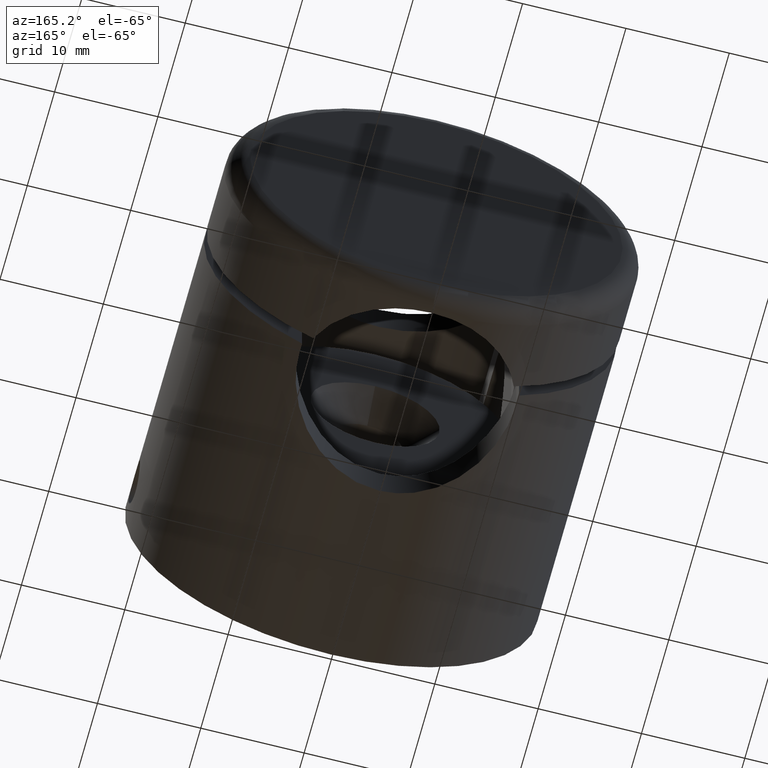
[diagram: clean part render]
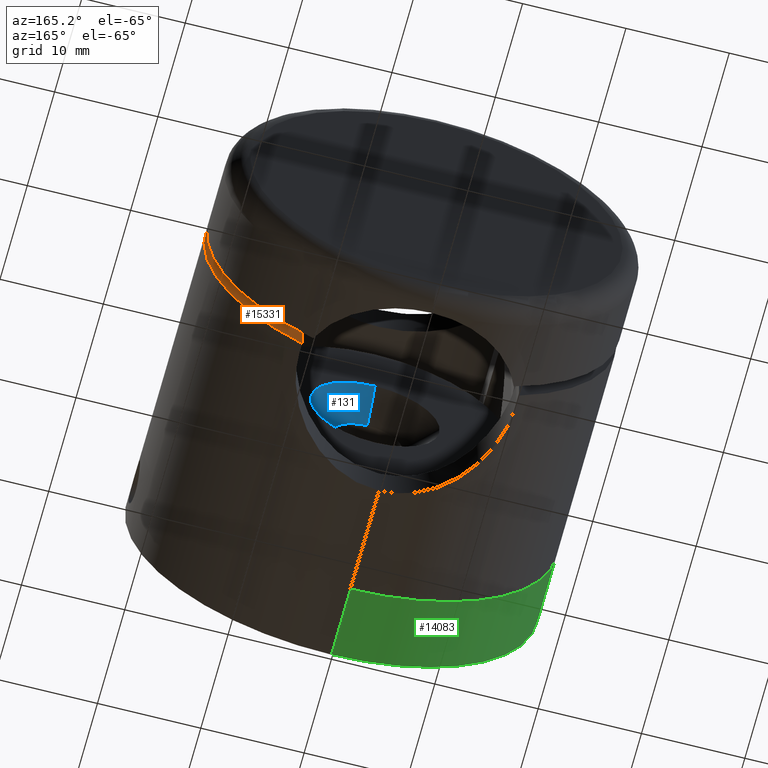
[diagram: same view with three faces highlighted in distinct colors, each labeled with its STEP entity id]
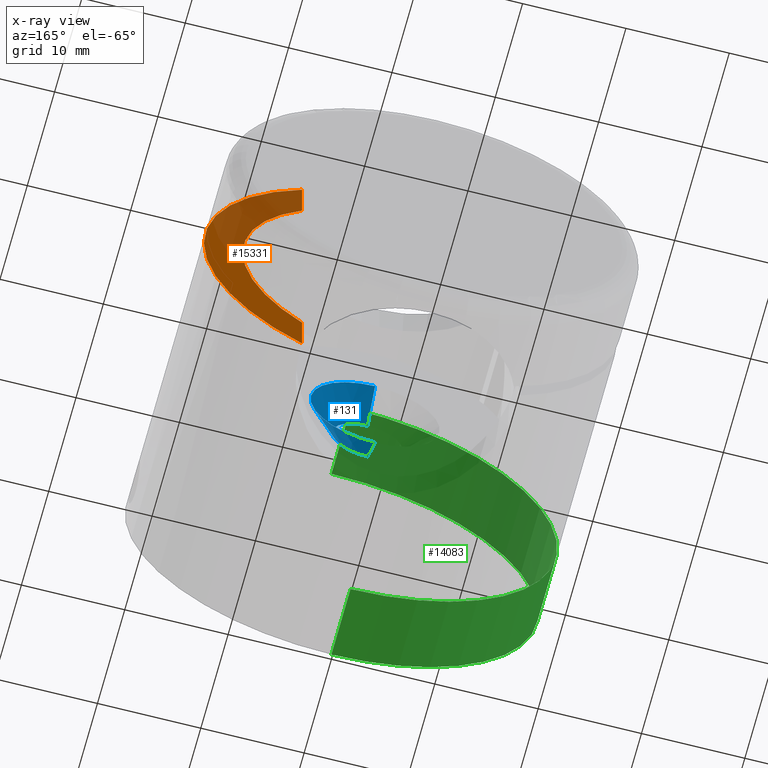
[diagram: x-ray of the same camera — body ghosted, the three highlighted faces saturated]
A machine part, auxiliary view with three faces highlighted in distinct colors.
The next image is the same camera in x-ray (body ghosted, the three faces saturated) — at least one of them is partly hidden behind the body in this view.
Their STEP definitions:

[orange] entity #15331 — the highlighted planar face has unit normal (0, -1, 0).
#114 = EDGE_CURVE ( 'NONE', #8402, #1784, #2574, .T. ) ;
#533 = DIRECTION ( 'NONE',  ( 0.000000000000000000, 0.000000000000000000, 1.000000000000000000 ) ) ;
#1197 = CARTESIAN_POINT ( 'NONE',  ( -10.49999999999997513, 0.000000000000000000, -12.40211675481248399 ) ) ;
#1621 = CARTESIAN_POINT ( 'NONE',  ( 0.000000000000000000, 0.000000000000000000, 0.000000000000000000 ) ) ;
#1784 = VERTEX_POINT ( 'NONE', #16243 ) ;
#2009 = CARTESIAN_POINT ( 'NONE',  ( 0.000000000000000000, 0.000000000000000000, 0.000000000000000000 ) ) ;
#2290 = DIRECTION ( 'NONE',  ( 0.000000000000000000, -0.000000000000000000, 1.000000000000000000 ) ) ;
#2574 = CIRCLE ( 'NONE', #8808, 20.00000000000000000 ) ;
#3134 = CARTESIAN_POINT ( 'NONE',  ( -10.49999999999998224, 0.000000000000000000, -17.02204453054921274 ) ) ;
#3734 = VERTEX_POINT ( 'NONE', #1197 ) ;
#4192 = VECTOR ( 'NONE', #7419, 1000.000000000000000 ) ;
#5649 = DIRECTION ( 'NONE',  ( 0.000000000000000000, 1.000000000000000000, 0.000000000000000000 ) ) ;
#5765 = ORIENTED_EDGE ( 'NONE', *, *, #12258, .T. ) ;
#5888 = CARTESIAN_POINT ( 'NONE',  ( 0.000000000000000000, 0.000000000000000000, 0.000000000000000000 ) ) ;
#7184 = CARTESIAN_POINT ( 'NONE',  ( -10.49999999999997513, 0.000000000000000000, 12.40211675481248399 ) ) ;
#7419 = DIRECTION ( 'NONE',  ( 0.000000000000000000, -0.000000000000000000, 1.000000000000000000 ) ) ;
#7601 = AXIS2_PLACEMENT_3D ( 'NONE', #2009, #5649, #2290 ) ;
#8402 = VERTEX_POINT ( 'NONE', #3134 ) ;
#8808 = AXIS2_PLACEMENT_3D ( 'NONE', #5888, #14849, #16142 ) ;
#9392 = FACE_OUTER_BOUND ( 'NONE', #11882, .T. ) ;
#10754 = DIRECTION ( 'NONE',  ( 0.000000000000000000, 1.000000000000000000, 0.000000000000000000 ) ) ;
#10815 = AXIS2_PLACEMENT_3D ( 'NONE', #1621, #10754, #533 ) ;
#11882 = EDGE_LOOP ( 'NONE', ( #14596, #5765, #11916, #15169 ) ) ;
#11916 = ORIENTED_EDGE ( 'NONE', *, *, #12163, .T. ) ;
#12018 = LINE ( 'NONE', #12498, #4192 ) ;
#12091 = PLANE ( 'NONE',  #7601 ) ;
#12163 = EDGE_CURVE ( 'NONE', #3734, #13656, #13986, .T. ) ;
#12258 = EDGE_CURVE ( 'NONE', #8402, #3734, #12018, .T. ) ;
#12498 = CARTESIAN_POINT ( 'NONE',  ( -10.49999999999998224, 0.000000000000000000, 0.000000000000000000 ) ) ;
#12694 = CARTESIAN_POINT ( 'NONE',  ( -10.49999999999998224, 0.000000000000000000, 0.000000000000000000 ) ) ;
#12701 = EDGE_CURVE ( 'NONE', #13656, #1784, #13849, .T. ) ;
#13656 = VERTEX_POINT ( 'NONE', #7184 ) ;
#13849 = LINE ( 'NONE', #12694, #16037 ) ;
#13986 = CIRCLE ( 'NONE', #10815, 16.25000000000000000 ) ;
#13993 = DIRECTION ( 'NONE',  ( 0.000000000000000000, -0.000000000000000000, 1.000000000000000000 ) ) ;
#14596 = ORIENTED_EDGE ( 'NONE', *, *, #114, .F. ) ;
#14849 = DIRECTION ( 'NONE',  ( 0.000000000000000000, 1.000000000000000000, 0.000000000000000000 ) ) ;
#15169 = ORIENTED_EDGE ( 'NONE', *, *, #12701, .T. ) ;
#15331 = ADVANCED_FACE ( 'NONE', ( #9392 ), #12091, .F. ) ;
#16037 = VECTOR ( 'NONE', #13993, 1000.000000000000000 ) ;
#16142 = DIRECTION ( 'NONE',  ( 0.000000000000000000, 0.000000000000000000, 1.000000000000000000 ) ) ;
#16243 = CARTESIAN_POINT ( 'NONE',  ( -10.49999999999998224, 0.000000000000000000, 17.02204453054921274 ) ) ;

[blue] entity #131 — the highlighted conical surface has half-angle 45 deg.
#131 = ADVANCED_FACE ( 'NONE', ( #16172 ), #15784, .F. ) ;
#610 = ORIENTED_EDGE ( 'NONE', *, *, #7771, .F. ) ;
#968 = AXIS2_PLACEMENT_3D ( 'NONE', #14247, #11849, #12956 ) ;
#2157 = EDGE_LOOP ( 'NONE', ( #610, #12133, #7526, #4733 ) ) ;
#2375 = CARTESIAN_POINT ( 'NONE',  ( 7.654042494670957606E-16, 16.00000000000000000, -6.250000000000000000 ) ) ;
#3663 = VERTEX_POINT ( 'NONE', #15015 ) ;
#3712 = EDGE_CURVE ( 'NONE', #15748, #5370, #13729, .T. ) ;
#4480 = EDGE_CURVE ( 'NONE', #11524, #15748, #10310, .T. ) ;
#4570 = CARTESIAN_POINT ( 'NONE',  ( 0.000000000000000000, 16.00000000000000000, 0.000000000000000000 ) ) ;
#4733 = ORIENTED_EDGE ( 'NONE', *, *, #3712, .T. ) ;
#5370 = VERTEX_POINT ( 'NONE', #2375 ) ;
#5399 = CARTESIAN_POINT ( 'NONE',  ( 0.000000000000000000, 16.00000000000000000, 6.250000000000000000 ) ) ;
#6024 = VECTOR ( 'NONE', #10896, 999.9999999999998863 ) ;
#6176 = DIRECTION ( 'NONE',  ( -0.000000000000000000, 1.000000000000000000, -0.000000000000000000 ) ) ;
#7526 = ORIENTED_EDGE ( 'NONE', *, *, #4480, .T. ) ;
#7771 = EDGE_CURVE ( 'NONE', #3663, #5370, #11456, .T. ) ;
#8470 = CARTESIAN_POINT ( 'NONE',  ( 7.654042494670957606E-16, 16.00000000000000000, -6.250000000000000000 ) ) ;
#10100 = CARTESIAN_POINT ( 'NONE',  ( 0.000000000000000000, 16.00000000000000000, 0.000000000000000000 ) ) ;
#10161 = DIRECTION ( 'NONE',  ( 0.000000000000000000, 0.000000000000000000, 1.000000000000000000 ) ) ;
#10310 = LINE ( 'NONE', #11859, #12895 ) ;
#10347 = AXIS2_PLACEMENT_3D ( 'NONE', #10100, #6176, #15236 ) ;
#10524 = AXIS2_PLACEMENT_3D ( 'NONE', #4570, #13527, #10161 ) ;
#10681 = CARTESIAN_POINT ( 'NONE',  ( 0.000000000000000000, 13.15000000000000036, 3.399999999999997691 ) ) ;
#10896 = DIRECTION ( 'NONE',  ( 8.659560562354937789E-17, 0.7071067811865472397, -0.7071067811865479058 ) ) ;
#11456 = LINE ( 'NONE', #8470, #6024 ) ;
#11524 = VERTEX_POINT ( 'NONE', #10681 ) ;
#11678 = DIRECTION ( 'NONE',  ( 0.000000000000000000, 0.7071067811865472397, 0.7071067811865479058 ) ) ;
#11849 = DIRECTION ( 'NONE',  ( 0.000000000000000000, -1.000000000000000000, 0.000000000000000000 ) ) ;
#11859 = CARTESIAN_POINT ( 'NONE',  ( 0.000000000000000000, 16.00000000000000000, 6.250000000000000000 ) ) ;
#12133 = ORIENTED_EDGE ( 'NONE', *, *, #14431, .T. ) ;
#12396 = CIRCLE ( 'NONE', #968, 3.399999999999997691 ) ;
#12895 = VECTOR ( 'NONE', #11678, 999.9999999999998863 ) ;
#12956 = DIRECTION ( 'NONE',  ( 0.000000000000000000, 0.000000000000000000, 1.000000000000000000 ) ) ;
#13527 = DIRECTION ( 'NONE',  ( -0.000000000000000000, 1.000000000000000000, -0.000000000000000000 ) ) ;
#13729 = CIRCLE ( 'NONE', #10347, 6.250000000000000000 ) ;
#14247 = CARTESIAN_POINT ( 'NONE',  ( 0.000000000000000000, 13.15000000000000036, 0.000000000000000000 ) ) ;
#14431 = EDGE_CURVE ( 'NONE', #3663, #11524, #12396, .T. ) ;
#15015 = CARTESIAN_POINT ( 'NONE',  ( 5.908920805885977604E-16, 13.15000000000000036, -3.399999999999997691 ) ) ;
#15236 = DIRECTION ( 'NONE',  ( 0.000000000000000000, 0.000000000000000000, 1.000000000000000000 ) ) ;
#15748 = VERTEX_POINT ( 'NONE', #5399 ) ;
#15784 = CONICAL_SURFACE ( 'NONE', #10524, 6.250000000000000000, 0.7853981633974487231 ) ;
#16172 = FACE_OUTER_BOUND ( 'NONE', #2157, .T. ) ;

[green] entity #14083 — the highlighted cylindrical surface (partial cylindrical patch) has radius 20 mm, axis along (-0, -1, -0).
#365 = DIRECTION ( 'NONE',  ( -0.000000000000000000, -1.000000000000000000, -0.000000000000000000 ) ) ;
#885 = ORIENTED_EDGE ( 'NONE', *, *, #15524, .F. ) ;
#946 = CARTESIAN_POINT ( 'NONE',  ( 0.000000000000000000, 0.000000000000000000, -20.00000000000000000 ) ) ;
#2237 = LINE ( 'NONE', #7861, #6627 ) ;
#2800 = VECTOR ( 'NONE', #13975, 1000.000000000000000 ) ;
#2909 = AXIS2_PLACEMENT_3D ( 'NONE', #14426, #365, #8047 ) ;
#2998 = CIRCLE ( 'NONE', #5080, 20.00000000000000000 ) ;
#3710 = VERTEX_POINT ( 'NONE', #8705 ) ;
#4059 = DIRECTION ( 'NONE',  ( -0.000000000000000000, -1.000000000000000000, -0.000000000000000000 ) ) ;
#4495 = DIRECTION ( 'NONE',  ( 0.000000000000000000, 0.000000000000000000, 1.000000000000000000 ) ) ;
#5080 = AXIS2_PLACEMENT_3D ( 'NONE', #15958, #9490, #4495 ) ;
#5089 = CARTESIAN_POINT ( 'NONE',  ( 2.449293598294706513E-15, 0.000000000000000000, 20.00000000000000000 ) ) ;
#5746 = ORIENTED_EDGE ( 'NONE', *, *, #15012, .T. ) ;
#6513 = ORIENTED_EDGE ( 'NONE', *, *, #7598, .T. ) ;
#6627 = VECTOR ( 'NONE', #4059, 1000.000000000000000 ) ;
#7598 = EDGE_CURVE ( 'NONE', #3710, #11924, #2237, .T. ) ;
#7627 = CARTESIAN_POINT ( 'NONE',  ( 2.449293598294706513E-15, 7.000000000000000000, 20.00000000000000000 ) ) ;
#7861 = CARTESIAN_POINT ( 'NONE',  ( 0.000000000000000000, 7.000000000000000000, -20.00000000000000000 ) ) ;
#8047 = DIRECTION ( 'NONE',  ( 0.000000000000000000, 0.000000000000000000, -1.000000000000000000 ) ) ;
#8694 = VERTEX_POINT ( 'NONE', #5089 ) ;
#8705 = CARTESIAN_POINT ( 'NONE',  ( 0.000000000000000000, 7.000000000000000000, -20.00000000000000000 ) ) ;
#8723 = CARTESIAN_POINT ( 'NONE',  ( 2.449293598294706513E-15, 7.000000000000000000, 20.00000000000000000 ) ) ;
#8794 = EDGE_LOOP ( 'NONE', ( #885, #14784, #6513, #5746 ) ) ;
#9490 = DIRECTION ( 'NONE',  ( 0.000000000000000000, 1.000000000000000000, 0.000000000000000000 ) ) ;
#9823 = FACE_OUTER_BOUND ( 'NONE', #8794, .T. ) ;
#10139 = DIRECTION ( 'NONE',  ( 0.000000000000000000, 0.000000000000000000, 1.000000000000000000 ) ) ;
#11531 = EDGE_CURVE ( 'NONE', #3710, #12403, #2998, .T. ) ;
#11606 = CYLINDRICAL_SURFACE ( 'NONE', #2909, 20.00000000000000000 ) ;
#11797 = CIRCLE ( 'NONE', #13631, 20.00000000000000000 ) ;
#11924 = VERTEX_POINT ( 'NONE', #946 ) ;
#12403 = VERTEX_POINT ( 'NONE', #7627 ) ;
#12529 = CARTESIAN_POINT ( 'NONE',  ( 0.000000000000000000, 0.000000000000000000, 0.000000000000000000 ) ) ;
#12699 = DIRECTION ( 'NONE',  ( 0.000000000000000000, 1.000000000000000000, 0.000000000000000000 ) ) ;
#13398 = LINE ( 'NONE', #8723, #2800 ) ;
#13631 = AXIS2_PLACEMENT_3D ( 'NONE', #12529, #12699, #10139 ) ;
#13975 = DIRECTION ( 'NONE',  ( -0.000000000000000000, -1.000000000000000000, -0.000000000000000000 ) ) ;
#14083 = ADVANCED_FACE ( 'NONE', ( #9823 ), #11606, .T. ) ;
#14426 = CARTESIAN_POINT ( 'NONE',  ( 0.000000000000000000, 7.000000000000000000, 0.000000000000000000 ) ) ;
#14784 = ORIENTED_EDGE ( 'NONE', *, *, #11531, .F. ) ;
#15012 = EDGE_CURVE ( 'NONE', #11924, #8694, #11797, .T. ) ;
#15524 = EDGE_CURVE ( 'NONE', #12403, #8694, #13398, .T. ) ;
#15958 = CARTESIAN_POINT ( 'NONE',  ( 0.000000000000000000, 7.000000000000000000, 0.000000000000000000 ) ) ;